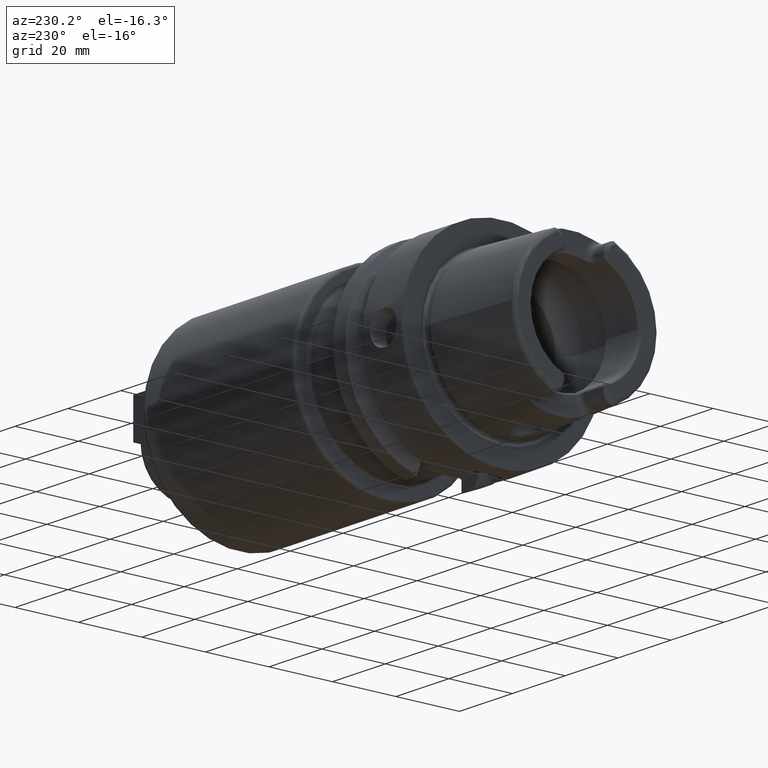
[diagram: clean part render]
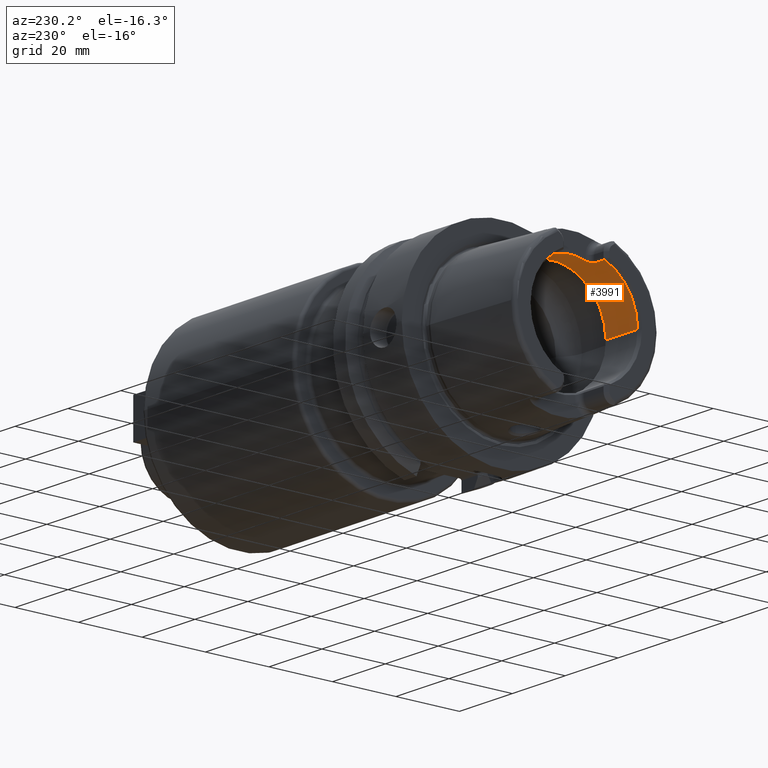
[diagram: same view with one face highlighted and labeled with its STEP entity id]
A machine part, auxiliary view. The second image highlights one B-rep face of the part: STEP entity #3991.
In plain terms, the highlighted cylindrical surface (partial cylindrical patch) has radius 17 mm, axis along (1, 0, 0).
Its self-contained STEP definition (entity closure, byte-faithful):
#362=CARTESIAN_POINT('',(-3.1E1,0.E0,0.E0));
#363=DIRECTION('',(1.E0,0.E0,0.E0));
#364=DIRECTION('',(0.E0,1.E0,0.E0));
#365=AXIS2_PLACEMENT_3D('',#362,#363,#364);
#394=CARTESIAN_POINT('',(-3.1E1,0.E0,0.E0));
#395=DIRECTION('',(1.E0,0.E0,0.E0));
#396=DIRECTION('',(0.E0,-3.910839598454E-1,9.203550056102E-1));
#397=AXIS2_PLACEMENT_3D('',#394,#395,#396);
#559=DIRECTION('',(1.E0,0.E0,0.E0));
#560=VECTOR('',#559,3.5E0);
#561=CARTESIAN_POINT('',(-3.1E1,6.648427317371E0,1.564603509537E1));
#562=LINE('',#561,#560);
#563=CARTESIAN_POINT('',(-2.571132486541E1,4.77E0,1.631708000838E1));
#564=CARTESIAN_POINT('',(-2.570911463045E1,4.851899929325E0,1.629313806150E1));
#565=CARTESIAN_POINT('',(-2.571539985496E1,5.014300274441E0,1.624433189365E1));
#566=CARTESIAN_POINT('',(-2.575723226820E1,5.255574737127E0,1.616786516493E1));
#567=CARTESIAN_POINT('',(-2.583019759937E1,5.488813832187E0,1.609012650164E1));
#568=CARTESIAN_POINT('',(-2.593222755914E1,5.709311810621E0,1.601314455534E1));
#569=CARTESIAN_POINT('',(-2.606208908479E1,5.913640570765E0,1.593873381343E1));
#570=CARTESIAN_POINT('',(-2.621579663552E1,6.097621457296E0,1.586916363348E1));
#571=CARTESIAN_POINT('',(-2.639004084082E1,6.257927374534E0,1.580654307494E1));
#572=CARTESIAN_POINT('',(-2.658287946713E1,6.394281114327E0,1.575179653388E1));
#573=CARTESIAN_POINT('',(-2.679414325254E1,6.504885265694E0,1.570637036291E1));
#574=CARTESIAN_POINT('',(-2.702072491693E1,6.586740689310E0,1.567215753589E1));
#575=CARTESIAN_POINT('',(-2.725841410654E1,6.637201205541E0,1.565081274977E1));
#576=CARTESIAN_POINT('',(-2.741884128981E1,6.648427317371E0,1.564603509537E1));
#577=CARTESIAN_POINT('',(-2.75E1,6.648427317371E0,1.564603509537E1));
#579=CARTESIAN_POINT('',(-2.571132486541E1,-4.77E0,1.631708000838E1));
#580=CARTESIAN_POINT('',(-2.571132486541E1,-4.151241293882E0,1.649796280277E1));
#581=CARTESIAN_POINT('',(-2.571132889067E1,-2.893125957956E0,1.678926713017E1));
#582=CARTESIAN_POINT('',(-2.571132738120E1,-9.685489423330E-1,
1.700915920873E1));
#583=CARTESIAN_POINT('',(-2.571132738120E1,9.685489423332E-1,1.700915920873E1));
#584=CARTESIAN_POINT('',(-2.571132889067E1,2.893125957955E0,1.678926713017E1));
#585=CARTESIAN_POINT('',(-2.571132486541E1,4.151241293884E0,1.649796280277E1));
#586=CARTESIAN_POINT('',(-2.571132486541E1,4.77E0,1.631708000838E1));
#588=CARTESIAN_POINT('',(-2.75E1,-6.648427317371E0,1.564603509537E1));
#589=CARTESIAN_POINT('',(-2.741886739757E1,-6.648427317371E0,1.564603509537E1));
#590=CARTESIAN_POINT('',(-2.725846026145E1,-6.637216591931E0,1.565080624648E1));
#591=CARTESIAN_POINT('',(-2.702047669465E1,-6.586680175792E0,1.567218311946E1));
#592=CARTESIAN_POINT('',(-2.679396033382E1,-6.504789416100E0,1.570640995358E1));
#593=CARTESIAN_POINT('',(-2.658322850975E1,-6.394447887183E0,1.575172726773E1));
#594=CARTESIAN_POINT('',(-2.639118887217E1,-6.258799446744E0,1.580619508840E1));
#595=CARTESIAN_POINT('',(-2.621738949273E1,-6.099242016698E0,1.586853752436E1));
#596=CARTESIAN_POINT('',(-2.606384631874E1,-5.916012648986E0,1.593785105703E1));
#597=CARTESIAN_POINT('',(-2.593366664869E1,-5.711955003317E0,1.601220141386E1));
#598=CARTESIAN_POINT('',(-2.583107108488E1,-5.491206341112E0,1.608931480424E1));
#599=CARTESIAN_POINT('',(-2.575746962839E1,-5.256749499660E0,1.616748882623E1));
#600=CARTESIAN_POINT('',(-2.571543732099E1,-5.014873021211E0,1.624415783103E1));
#601=CARTESIAN_POINT('',(-2.570911008721E1,-4.852068278437E0,1.629308884771E1));
#602=CARTESIAN_POINT('',(-2.571132486541E1,-4.77E0,1.631708000838E1));
#604=DIRECTION('',(1.E0,0.E0,0.E0));
#605=VECTOR('',#604,3.5E0);
#606=CARTESIAN_POINT('',(-3.1E1,-6.648427317371E0,1.564603509537E1));
#607=LINE('',#606,#605);
#608=CARTESIAN_POINT('',(-1.899602540378E1,0.E0,0.E0));
#609=DIRECTION('',(1.E0,0.E0,0.E0));
#610=DIRECTION('',(0.E0,1.E0,0.E0));
#611=AXIS2_PLACEMENT_3D('',#608,#609,#610);
#666=DIRECTION('',(-1.E0,0.E0,0.E0));
#667=VECTOR('',#666,1.200397459622E1);
#668=CARTESIAN_POINT('',(-1.899602540378E1,1.7E1,0.E0));
#669=LINE('',#668,#667);
#675=DIRECTION('',(-1.E0,0.E0,0.E0));
#676=VECTOR('',#675,1.200397459622E1);
#677=CARTESIAN_POINT('',(-1.899602540378E1,-1.7E1,0.E0));
#678=LINE('',#677,#676);
#2901=CARTESIAN_POINT('',(-1.899602540378E1,1.7E1,0.E0));
#2902=VERTEX_POINT('',#2901);
#2903=CARTESIAN_POINT('',(-3.1E1,1.7E1,0.E0));
#2904=VERTEX_POINT('',#2903);
#2913=CARTESIAN_POINT('',(-1.899602540378E1,-1.7E1,0.E0));
#2914=VERTEX_POINT('',#2913);
#2915=CARTESIAN_POINT('',(-3.1E1,-1.7E1,0.E0));
#2916=VERTEX_POINT('',#2915);
#2982=CARTESIAN_POINT('',(-2.75E1,6.648427317371E0,1.564603509537E1));
#2983=VERTEX_POINT('',#2982);
#2984=CARTESIAN_POINT('',(-2.571132486541E1,4.77E0,1.631708000838E1));
#2985=VERTEX_POINT('',#2984);
#2986=CARTESIAN_POINT('',(-2.75E1,-6.648427317371E0,1.564603509537E1));
#2987=VERTEX_POINT('',#2986);
#2988=CARTESIAN_POINT('',(-2.571132486541E1,-4.77E0,1.631708000838E1));
#2989=VERTEX_POINT('',#2988);
#2994=CARTESIAN_POINT('',(-3.1E1,6.648427317371E0,1.564603509537E1));
#2995=VERTEX_POINT('',#2994);
#2996=CARTESIAN_POINT('',(-3.1E1,-6.648427317371E0,1.564603509537E1));
#2997=VERTEX_POINT('',#2996);
#3970=CARTESIAN_POINT('',(-3.41E1,0.E0,0.E0));
#3971=DIRECTION('',(1.E0,0.E0,0.E0));
#3972=DIRECTION('',(0.E0,-1.E0,0.E0));
#3973=AXIS2_PLACEMENT_3D('',#3970,#3971,#3972);
#3974=CYLINDRICAL_SURFACE('',#3973,1.7E1);
#3975=ORIENTED_EDGE('',*,*,#3707,.T.);
#3977=ORIENTED_EDGE('',*,*,#3976,.F.);
#3978=ORIENTED_EDGE('',*,*,#3855,.F.);
#3979=ORIENTED_EDGE('',*,*,#3910,.F.);
#3980=ORIENTED_EDGE('',*,*,#3925,.F.);
#3981=ORIENTED_EDGE('',*,*,#3672,.T.);
#3983=ORIENTED_EDGE('',*,*,#3982,.F.);
#3985=ORIENTED_EDGE('',*,*,#3984,.F.);
#3987=ORIENTED_EDGE('',*,*,#3986,.T.);
#3988=ORIENTED_EDGE('',*,*,#3652,.T.);
#3989=EDGE_LOOP('',(#3975,#3977,#3978,#3979,#3980,#3981,#3983,#3985,#3987,
#3988));
#3990=FACE_OUTER_BOUND('',#3989,.F.);
#3991=ADVANCED_FACE('',(#3990),#3974,.F.);
#366=CIRCLE('',#365,1.7E1);
#398=CIRCLE('',#397,1.7E1);
#578=B_SPLINE_CURVE_WITH_KNOTS('',3,(#563,#564,#565,#566,#567,#568,#569,#570,
#571,#572,#573,#574,#575,#576,#577),.UNSPECIFIED.,.F.,.F.,(4,1,1,1,1,1,1,1,1,1,
1,1,4),(0.E0,8.333333333333E-2,1.666666666667E-1,2.5E-1,3.333333333333E-1,
4.166666666667E-1,5.E-1,5.833333333333E-1,6.666666666667E-1,7.5E-1,
8.333333333333E-1,9.166666666667E-1,1.E0),.UNSPECIFIED.);
#587=B_SPLINE_CURVE_WITH_KNOTS('',3,(#579,#580,#581,#582,#583,#584,#585,#586),
.UNSPECIFIED.,.F.,.F.,(4,1,1,1,1,4),(0.E0,2.E-1,4.E-1,6.E-1,8.E-1,1.E0),
.UNSPECIFIED.);
#603=B_SPLINE_CURVE_WITH_KNOTS('',3,(#588,#589,#590,#591,#592,#593,#594,#595,
#596,#597,#598,#599,#600,#601,#602),.UNSPECIFIED.,.F.,.F.,(4,1,1,1,1,1,1,1,1,1,
1,1,4),(0.E0,8.333333333333E-2,1.666666666667E-1,2.5E-1,3.333333333333E-1,
4.166666666667E-1,5.E-1,5.833333333333E-1,6.666666666667E-1,7.5E-1,
8.333333333333E-1,9.166666666667E-1,1.E0),.UNSPECIFIED.);
#612=CIRCLE('',#611,1.7E1);
#3652=EDGE_CURVE('',#2904,#2995,#366,.T.);
#3672=EDGE_CURVE('',#2997,#2916,#398,.T.);
#3707=EDGE_CURVE('',#2995,#2983,#562,.T.);
#3855=EDGE_CURVE('',#2989,#2985,#587,.T.);
#3910=EDGE_CURVE('',#2987,#2989,#603,.T.);
#3925=EDGE_CURVE('',#2997,#2987,#607,.T.);
#3976=EDGE_CURVE('',#2985,#2983,#578,.T.);
#3982=EDGE_CURVE('',#2914,#2916,#678,.T.);
#3984=EDGE_CURVE('',#2902,#2914,#612,.T.);
#3986=EDGE_CURVE('',#2902,#2904,#669,.T.);